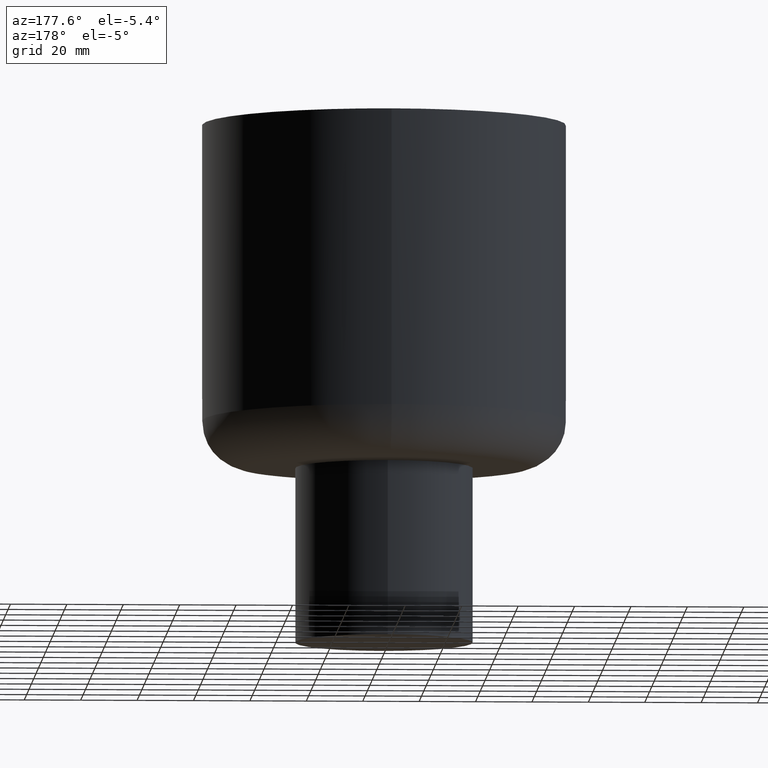
[diagram: clean part render]
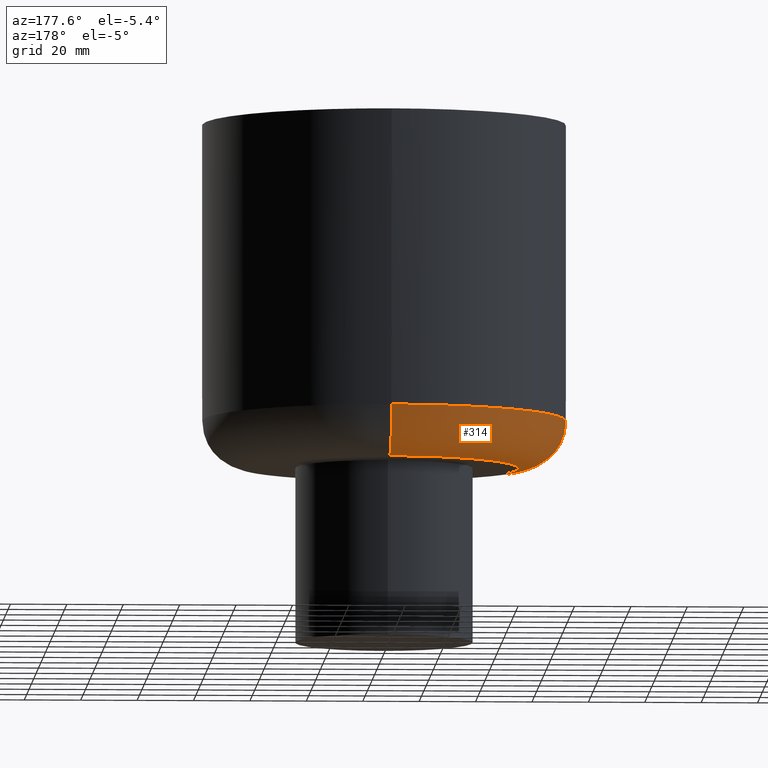
[diagram: same view with one face highlighted and labeled with its STEP entity id]
A machine part, auxiliary view. The second image highlights one B-rep face of the part: STEP entity #314.
In plain terms, the highlighted toroidal blend (fillet) surface has major radius 47.7045 mm and minor (blend) radius 16.7955 mm.
Its self-contained STEP definition (entity closure, byte-faithful):
#24=TOROIDAL_SURFACE('',#364,47.7044883655415,16.7955116344587);
#48=FACE_OUTER_BOUND('',#72,.T.);
#72=EDGE_LOOP('',(#251,#252,#253,#254));
#130=B_SPLINE_CURVE_WITH_KNOTS('',3,(#504,#505,#506,#507,#508,#509,#510,
#511,#512,#513,#514),.UNSPECIFIED.,.F.,.F.,(4,1,1,1,1,1,1,1,4),(0.,0.125,
0.25,0.375,0.5,0.625,0.75,0.875,1.),.UNSPECIFIED.);
#138=B_SPLINE_CURVE_WITH_KNOTS('',3,(#602,#603,#604,#605,#606,#607,#608,
#609,#610,#611),.UNSPECIFIED.,.F.,.F.,(4,1,1,1,1,1,1,4),(0.,0.142857142857143,
0.285714285714286,0.428571428571429,0.571428571428571,0.714285714285714,
0.857142857142857,1.),.UNSPECIFIED.);
#139=B_SPLINE_CURVE_WITH_KNOTS('',3,(#613,#614,#615,#616,#617,#618,#619,
#620,#621,#622,#623,#624,#625,#626,#627,#628,#629,#630,#631,#632,#633,#634,
#635,#636,#637,#638,#639,#640,#641,#642,#643,#644,#645,#646,#647,#648,#649,
#650,#651,#652,#653,#654,#655,#656,#657,#658,#659,#660,#661,#662,#663,#664,
#665,#666,#667,#668,#669,#670,#671,#672,#673,#674,#675,#676,#677,#678,#679,
#680,#681,#682,#683,#684,#685,#686,#687,#688,#689,#690,#691,#692,#693,#694,
#695,#696,#697,#698,#699,#700,#701,#702,#703,#704,#705,#706,#707,#708,#709,
#710,#711,#712,#713,#714,#715),.UNSPECIFIED.,.F.,.F.,(4,3,3,3,3,3,3,3,3,
3,3,3,3,3,3,3,3,3,3,3,3,3,3,3,3,3,3,3,3,3,3,3,3,3,4),(0.,0.0280312962135223,
0.0565897947593608,0.0860713636731308,0.116019515579909,0.146540267381907,
0.177647811120982,0.209355084103488,0.241672974058842,0.274609200328791,
0.308166766326422,0.34234187043375,0.377121184270044,0.412478492514942,
0.449198586732758,0.483623675061961,0.493893843767696,0.498300715537556,
0.502039834296296,0.538422586250105,0.574344910084195,0.609743995866938,
0.644576553043911,0.678815533811602,0.712446616993677,0.745465011656779,
0.777558215542277,0.809092231119628,0.840077025451647,0.870523957961256,
0.900445257379398,0.929611729153235,0.958354526960363,0.98648483739772,
1.),.UNSPECIFIED.);
#140=B_SPLINE_CURVE_WITH_KNOTS('',3,(#716,#717,#718,#719,#720,#721,#722,
#723,#724,#725,#726,#727,#728,#729,#730,#731,#732,#733,#734,#735,#736,#737,
#738,#739,#740,#741,#742,#743,#744,#745,#746,#747,#748,#749,#750,#751,#752,
#753,#754,#755,#756,#757,#758,#759,#760,#761,#762,#763,#764,#765,#766,#767,
#768,#769,#770,#771,#772,#773,#774,#775,#776,#777,#778,#779,#780,#781,#782,
#783,#784,#785,#786,#787,#788,#789,#790,#791,#792,#793,#794,#795,#796,#797,
#798,#799,#800,#801,#802,#803,#804,#805,#806,#807,#808,#809,#810,#811,#812,
#813,#814,#815,#816,#817,#818),.UNSPECIFIED.,.F.,.F.,(4,3,3,3,3,3,3,3,3,
3,3,3,3,3,3,3,3,3,3,3,3,3,3,3,3,3,3,3,3,3,3,3,3,3,4),(0.,0.0280312962136034,
0.0565897947594401,0.0860713636732076,0.116019515580039,0.146540267382073,
0.177647811121092,0.209355084103629,0.241672974059043,0.274609200328942,
0.308166766326558,0.342341870433903,0.377121184270369,0.41247849251534,
0.449198586733132,0.483623675062311,0.493893843768526,0.498300715538562,
0.502039834294189,0.538422586248044,0.57434491008215,0.609743995865032,
0.644576553041988,0.678815533809669,0.712446616991702,0.745465011655011,
0.777558215540569,0.80909223111796,0.840077025449938,0.870523957959576,
0.900445257377577,0.929611729151513,0.95835452695871,0.9864848373962,1.),
 .UNSPECIFIED.);
#141=VERTEX_POINT('',#485);
#142=VERTEX_POINT('',#486);
#151=VERTEX_POINT('',#588);
#152=VERTEX_POINT('',#589);
#169=EDGE_CURVE('',#142,#141,#130,.T.);
#186=EDGE_CURVE('',#151,#152,#138,.T.);
#187=EDGE_CURVE('',#141,#151,#139,.T.);
#188=EDGE_CURVE('',#152,#142,#140,.T.);
#251=ORIENTED_EDGE('',*,*,#186,.T.);
#252=ORIENTED_EDGE('',*,*,#188,.T.);
#253=ORIENTED_EDGE('',*,*,#169,.T.);
#254=ORIENTED_EDGE('',*,*,#187,.T.);
#314=ADVANCED_FACE('',(#48),#24,.T.);
#364=AXIS2_PLACEMENT_3D('',#819,#431,#432);
#431=DIRECTION('center_axis',(0.,-1.63087261263545E-15,-1.));
#432=DIRECTION('ref_axis',(0.,-1.,1.54226330242502E-15));
#485=CARTESIAN_POINT('',(-2.08405250101804E-13,64.5000000000003,-105.204488365541));
#486=CARTESIAN_POINT('',(0.,-64.5000000000002,-105.204488365541));
#504=CARTESIAN_POINT('Ctrl Pts',(0.,-64.5000000000002,-105.204488365541));
#505=CARTESIAN_POINT('Ctrl Pts',(-8.47701262546043,-64.5848508983598,-105.204488365541));
#506=CARTESIAN_POINT('Ctrl Pts',(-25.3093772856424,-61.1022418982154,-105.204488365541));
#507=CARTESIAN_POINT('Ctrl Pts',(-46.8001488873511,-46.8062560905751,-105.204488365541));
#508=CARTESIAN_POINT('Ctrl Pts',(-61.1403514841479,-25.3230580586788,-105.204488365541));
#509=CARTESIAN_POINT('Ctrl Pts',(-66.1798242579264,-4.86444218239512E-14,
-105.204488365541));
#510=CARTESIAN_POINT('Ctrl Pts',(-61.140351484148,25.3230580586787,-105.204488365541));
#511=CARTESIAN_POINT('Ctrl Pts',(-46.8001488873512,46.8062560905751,-105.204488365541));
#512=CARTESIAN_POINT('Ctrl Pts',(-25.3093772856426,61.1022418982155,-105.204488365541));
#513=CARTESIAN_POINT('Ctrl Pts',(-8.47701262546063,64.5848508983599,-105.204488365541));
#514=CARTESIAN_POINT('Ctrl Pts',(-2.08853767613704E-13,64.5000000000003,
-105.204488365541));
#588=CARTESIAN_POINT('',(-1.58623114643319E-13,47.7044883655416,-122.));
#589=CARTESIAN_POINT('',(0.,-47.7044883655415,-122.));
#602=CARTESIAN_POINT('Ctrl Pts',(-1.54137454710066E-13,47.7044883655416,
-122.));
#603=CARTESIAN_POINT('Ctrl Pts',(-7.18525898615853,47.8086943355471,-122.));
#604=CARTESIAN_POINT('Ctrl Pts',(-21.38145723644,44.3990534413639,-122.));
#605=CARTESIAN_POINT('Ctrl Pts',(-38.5762219016101,30.7718247113022,-122.));
#606=CARTESIAN_POINT('Ctrl Pts',(-48.0948803123814,10.9732197062494,-122.));
#607=CARTESIAN_POINT('Ctrl Pts',(-48.0948803123814,-10.9732197062495,-122.));
#608=CARTESIAN_POINT('Ctrl Pts',(-38.57622190161,-30.7718247113023,-122.));
#609=CARTESIAN_POINT('Ctrl Pts',(-21.3814572364399,-44.3990534413639,-122.));
#610=CARTESIAN_POINT('Ctrl Pts',(-7.18525898615838,-47.8086943355471,-122.));
#611=CARTESIAN_POINT('Ctrl Pts',(-2.80895098847544E-16,-47.7044883655415,
-122.));
#613=CARTESIAN_POINT('Ctrl Pts',(7.89897185450045E-15,64.5000000000003,
-105.204488365541));
#614=CARTESIAN_POINT('Ctrl Pts',(7.89897185450045E-15,64.5000000000003,
-105.491429505632));
#615=CARTESIAN_POINT('Ctrl Pts',(7.89807156651691E-15,64.4926485907272,
-105.775210999637));
#616=CARTESIAN_POINT('Ctrl Pts',(7.89632902044324E-15,64.4784196222207,
-106.055629516844));
#617=CARTESIAN_POINT('Ctrl Pts',(7.8945537012025E-15,64.4639230404962,-106.341322042614));
#618=CARTESIAN_POINT('Ctrl Pts',(-7.98048538845744E-14,64.4422879813638,
-106.62352414212));
#619=CARTESIAN_POINT('Ctrl Pts',(-7.79282347273998E-14,64.4139896921907,
-106.902067959537));
#620=CARTESIAN_POINT('Ctrl Pts',(-7.59909593164275E-14,64.3847767431605,
-107.189614895363));
#621=CARTESIAN_POINT('Ctrl Pts',(7.88041394096178E-15,64.3484631360522,
-107.473263414381));
#622=CARTESIAN_POINT('Ctrl Pts',(7.87515744004394E-15,64.3055405487275,
-107.75287559561));
#623=CARTESIAN_POINT('Ctrl Pts',(7.86981774837265E-15,64.2619386573494,
-108.03691299209));
#624=CARTESIAN_POINT('Ctrl Pts',(7.86364288919745E-15,64.2115171057682,
-108.316785600533));
#625=CARTESIAN_POINT('Ctrl Pts',(7.85669170536864E-15,64.15475638232,-108.59239232513));
#626=CARTESIAN_POINT('Ctrl Pts',(7.84960761694042E-15,64.0969104104598,
-108.873268569599));
#627=CARTESIAN_POINT('Ctrl Pts',(7.84171725341516E-15,64.0324807028024,
-109.149714562877));
#628=CARTESIAN_POINT('Ctrl Pts',(7.83307818293034E-15,63.9619373388641,
-109.421663242524));
#629=CARTESIAN_POINT('Ctrl Pts',(7.82427301768687E-15,63.8900377082963,
-109.698840407155));
#630=CARTESIAN_POINT('Ctrl Pts',(7.81469009587838E-15,63.8117872134176,
-109.971346001163));
#631=CARTESIAN_POINT('Ctrl Pts',(7.80438524165774E-15,63.7276416930291,
-110.239145107273));
#632=CARTESIAN_POINT('Ctrl Pts',(7.79388171786431E-15,63.6418739124678,
-110.512107171817));
#633=CARTESIAN_POINT('Ctrl Pts',(7.78262816979478E-15,63.5499817189198,
-110.780179878737));
#634=CARTESIAN_POINT('Ctrl Pts',(7.77067820813047E-15,63.4524028768191,
-111.043358085678));
#635=CARTESIAN_POINT('Ctrl Pts',(7.75849811474146E-15,63.3529448665789,
-111.3116045645));
#636=CARTESIAN_POINT('Ctrl Pts',(7.7455945359244E-15,63.2475791494918,-111.574766584334));
#637=CARTESIAN_POINT('Ctrl Pts',(7.73201840182118E-15,63.1367216017265,
-111.832865874949));
#638=CARTESIAN_POINT('Ctrl Pts',(7.71818251633137E-15,63.0237430229277,
-112.095903364326));
#639=CARTESIAN_POINT('Ctrl Pts',(7.70364809894336E-15,62.9050604983163,
-112.353682930808));
#640=CARTESIAN_POINT('Ctrl Pts',(7.68846293842389E-15,62.7810642527862,
-112.606249681565));
#641=CARTESIAN_POINT('Ctrl Pts',(7.67299131085672E-15,62.6547288262948,
-112.863581087351));
#642=CARTESIAN_POINT('Ctrl Pts',(7.65684415735022E-15,62.522877311901,-113.115501549394));
#643=CARTESIAN_POINT('Ctrl Pts',(7.64006567647721E-15,62.3858706183409,
-113.362075399121));
#644=CARTESIAN_POINT('Ctrl Pts',(7.62297843210917E-15,62.2463426795105,
-113.613186787388));
#645=CARTESIAN_POINT('Ctrl Pts',(7.60523640729545E-15,62.1014680525888,
-113.858753393883));
#646=CARTESIAN_POINT('Ctrl Pts',(7.58687978251375E-15,61.9515748360755,
-114.098853894592));
#647=CARTESIAN_POINT('Ctrl Pts',(7.56819861588869E-15,61.7990315343001,
-114.343199329215));
#648=CARTESIAN_POINT('Ctrl Pts',(7.54888091648269E-15,61.6412905479239,
-114.581884105676));
#649=CARTESIAN_POINT('Ctrl Pts',(7.52896245323397E-15,61.4786439524925,
-114.814995580548));
#650=CARTESIAN_POINT('Ctrl Pts',(7.50871296676725E-15,61.3132943473589,
-115.05198111486));
#651=CARTESIAN_POINT('Ctrl Pts',(7.48784256800745E-15,61.1428746085874,
-115.283207011111));
#652=CARTESIAN_POINT('Ctrl Pts',(7.46638227531662E-15,60.9676380203256,
-115.50876283287));
#653=CARTESIAN_POINT('Ctrl Pts',(7.4440948329556E-15,60.7856472424414,-115.74301231162));
#654=CARTESIAN_POINT('Ctrl Pts',(7.42117115065595E-15,60.5984611711954,
-115.971146735225));
#655=CARTESIAN_POINT('Ctrl Pts',(7.39763900496342E-15,60.4063066192959,
-116.193256454451));
#656=CARTESIAN_POINT('Ctrl Pts',(7.37557761837667E-15,60.2261617268901,
-116.401484316224));
#657=CARTESIAN_POINT('Ctrl Pts',(7.35298135692902E-15,60.0416492497956,
-116.604417235756));
#658=CARTESIAN_POINT('Ctrl Pts',(7.32986794117456E-15,59.8529138873176,
-116.80211607146));
#659=CARTESIAN_POINT('Ctrl Pts',(7.322972427156E-15,59.7966077423674,-116.861096323775));
#660=CARTESIAN_POINT('Ctrl Pts',(7.31603085287966E-15,59.7399254868699,
-116.919610619181));
#661=CARTESIAN_POINT('Ctrl Pts',(7.30904360944782E-15,59.6828703144177,
-116.977660280963));
#662=CARTESIAN_POINT('Ctrl Pts',(7.30604542249382E-15,59.6583882600321,
-117.00256906514));
#663=CARTESIAN_POINT('Ctrl Pts',(7.30303882640406E-15,59.6338375398419,
-117.027392298207));
#664=CARTESIAN_POINT('Ctrl Pts',(7.3000238501186E-15,59.6092183901609,-117.052130076201));
#665=CARTESIAN_POINT('Ctrl Pts',(7.29746571932314E-15,59.5883296670022,
-117.07311945247));
#666=CARTESIAN_POINT('Ctrl Pts',(7.29490185723534E-15,59.5673941442899,
-117.0940448979));
#667=CARTESIAN_POINT('Ctrl Pts',(7.29233002756467E-15,59.5463935613263,
-117.114924646269));
#668=CARTESIAN_POINT('Ctrl Pts',(7.26730535009047E-15,59.3420515625424,
-117.318090888049));
#669=CARTESIAN_POINT('Ctrl Pts',(7.24156752543831E-15,59.1318862751299,
-117.516595519237));
#670=CARTESIAN_POINT('Ctrl Pts',(7.21510868532118E-15,58.9158334496495,
-117.710285120178));
#671=CARTESIAN_POINT('Ctrl Pts',(7.18898468502101E-15,58.702514798767,-117.901523555829));
#672=CARTESIAN_POINT('Ctrl Pts',(7.16215774961931E-15,58.483456247188,-118.088068292408));
#673=CARTESIAN_POINT('Ctrl Pts',(7.13461811529521E-15,58.2585780672649,
-118.269724744238));
#674=CARTESIAN_POINT('Ctrl Pts',(7.10747961828798E-15,58.0369754221094,
-118.448735221149));
#675=CARTESIAN_POINT('Ctrl Pts',(7.07964898014452E-15,57.8097210156728,
-118.62299895777));
#676=CARTESIAN_POINT('Ctrl Pts',(7.05111550128654E-15,57.5767274792684,
-118.792280899453));
#677=CARTESIAN_POINT('Ctrl Pts',(7.02303867354364E-15,57.3474627821945,
-118.958853645115));
#678=CARTESIAN_POINT('Ctrl Pts',(6.99428126944759E-15,57.1126407574599,
-119.120602905176));
#679=CARTESIAN_POINT('Ctrl Pts',(6.96483254690385E-15,56.8721736892061,
-119.277254862201));
#680=CARTESIAN_POINT('Ctrl Pts',(6.93588565564677E-15,56.6358043843809,
-119.431237336601));
#681=CARTESIAN_POINT('Ctrl Pts',(6.90627075563095E-15,56.3939803740913,
-119.580294834732));
#682=CARTESIAN_POINT('Ctrl Pts',(6.87597786777236E-15,56.1466201729322,
-119.724117204113));
#683=CARTESIAN_POINT('Ctrl Pts',(6.84622281640825E-15,55.9036517400353,
-119.865386072509));
#684=CARTESIAN_POINT('Ctrl Pts',(6.81581358896174E-15,55.6553415540479,
-120.001604098029));
#685=CARTESIAN_POINT('Ctrl Pts',(6.78474167999419E-15,55.4016201627931,
-120.132427712919));
#686=CARTESIAN_POINT('Ctrl Pts',(6.75423583670416E-15,55.1525210485727,
-120.260867993128));
#687=CARTESIAN_POINT('Ctrl Pts',(6.72309118982215E-15,54.8982057071723,
-120.384108626888));
#688=CARTESIAN_POINT('Ctrl Pts',(6.69130132483041E-15,54.6386217600794,
-120.501775874443));
#689=CARTESIAN_POINT('Ctrl Pts',(6.66040222664342E-15,54.3863114759346,
-120.616146030986));
#690=CARTESIAN_POINT('Ctrl Pts',(6.62889352191133E-15,54.1290233765901,
-120.725250659607));
#691=CARTESIAN_POINT('Ctrl Pts',(6.59677151354628E-15,53.8667272730326,
-120.828701072434));
#692=CARTESIAN_POINT('Ctrl Pts',(6.56520919537533E-15,53.6090013867369,
-120.930348977119));
#693=CARTESIAN_POINT('Ctrl Pts',(6.53305471732761E-15,53.3464401480997,
-121.026537937185));
#694=CARTESIAN_POINT('Ctrl Pts',(6.50030733038745E-15,53.0790374409439,
-121.116855672115));
#695=CARTESIAN_POINT('Ctrl Pts',(6.46813029772369E-15,52.8162920298902,
-121.205600362257));
#696=CARTESIAN_POINT('Ctrl Pts',(6.43538078863558E-15,52.5488719940814,
-121.28867648552));
#697=CARTESIAN_POINT('Ctrl Pts',(6.40206138897168E-15,52.2767984485735,
-121.365651429128));
#698=CARTESIAN_POINT('Ctrl Pts',(6.36932037730134E-15,52.0094477994465,
-121.441290172695));
#699=CARTESIAN_POINT('Ctrl Pts',(4.45810352998207E-15,51.7376034776068,
-121.51103761493));
#700=CARTESIAN_POINT('Ctrl Pts',(6.30219365738766E-15,51.4613165344939,
-121.57444417404));
#701=CARTESIAN_POINT('Ctrl Pts',(8.11444757947744E-15,51.1897993841998,
-121.636756088043));
#702=CARTESIAN_POINT('Ctrl Pts',(4.55500989278027E-15,50.9139913759423,
-121.692944038183));
#703=CARTESIAN_POINT('Ctrl Pts',(6.20087363715179E-15,50.6339757836226,
-121.742544917946));
#704=CARTESIAN_POINT('Ctrl Pts',(7.8052170105111E-15,50.3610241729489,-121.790894511302));
#705=CARTESIAN_POINT('Ctrl Pts',(4.63199468244654E-15,50.0840743594905,
-121.832984994592));
#706=CARTESIAN_POINT('Ctrl Pts',(6.09913793033001E-15,49.8032406941861,
-121.868354955449));
#707=CARTESIAN_POINT('Ctrl Pts',(7.54496936496494E-15,49.5264864360135,
-121.903211130075));
#708=CARTESIAN_POINT('Ctrl Pts',(4.66739051227575E-15,49.2459600570614,
-121.931540452686));
#709=CARTESIAN_POINT('Ctrl Pts',(5.99609257183573E-15,48.9618114872831,
-121.952871858606));
#710=CARTESIAN_POINT('Ctrl Pts',(7.29648099139697E-15,48.6837179094822,
-121.973748708335));
#711=CARTESIAN_POINT('Ctrl Pts',(5.92755437691009E-15,48.4021546541998,
-121.987922496792));
#712=CARTESIAN_POINT('Ctrl Pts',(5.89267034409981E-15,48.1173049094851,
-121.994925928758));
#713=CARTESIAN_POINT('Ctrl Pts',(5.87591036639874E-15,47.9804493057899,
-121.998290716431));
#714=CARTESIAN_POINT('Ctrl Pts',(5.28641881318069E-15,47.8428357375669,
-122.));
#715=CARTESIAN_POINT('Ctrl Pts',(5.84211489818226E-15,47.7044883655416,
-122.));
#716=CARTESIAN_POINT('Ctrl Pts',(0.,-47.7044883655415,-122.));
#717=CARTESIAN_POINT('Ctrl Pts',(0.,-47.9914295056327,-122.));
#718=CARTESIAN_POINT('Ctrl Pts',(0.,-48.2752109996388,-121.992648590727));
#719=CARTESIAN_POINT('Ctrl Pts',(0.,-48.5556295168462,-121.97841962222));
#720=CARTESIAN_POINT('Ctrl Pts',(0.,-48.8413220426171,-121.963923040496));
#721=CARTESIAN_POINT('Ctrl Pts',(0.,-49.1235241421227,-121.942287981363));
#722=CARTESIAN_POINT('Ctrl Pts',(0.,-49.4020679595392,-121.91398969219));
#723=CARTESIAN_POINT('Ctrl Pts',(0.,-49.6896148953661,-121.88477674316));
#724=CARTESIAN_POINT('Ctrl Pts',(0.,-49.9732634143832,-121.848463136051));
#725=CARTESIAN_POINT('Ctrl Pts',(0.,-50.2528755956121,-121.805540548727));
#726=CARTESIAN_POINT('Ctrl Pts',(0.,-50.5369129920932,-121.761938657348));
#727=CARTESIAN_POINT('Ctrl Pts',(0.,-50.8167856005366,-121.711517105767));
#728=CARTESIAN_POINT('Ctrl Pts',(0.,-51.0923923251334,-121.654756382319));
#729=CARTESIAN_POINT('Ctrl Pts',(0.,-51.3732685696028,-121.596910410458));
#730=CARTESIAN_POINT('Ctrl Pts',(0.,-51.6497145628816,-121.532480702801));
#731=CARTESIAN_POINT('Ctrl Pts',(0.,-51.9216632425285,-121.461937338862));
#732=CARTESIAN_POINT('Ctrl Pts',(0.,-52.1988404071591,-121.390037708295));
#733=CARTESIAN_POINT('Ctrl Pts',(0.,-52.4713460011665,-121.311787213416));
#734=CARTESIAN_POINT('Ctrl Pts',(0.,-52.739145107276,-121.227641693028));
#735=CARTESIAN_POINT('Ctrl Pts',(0.,-53.0121071718199,-121.141873912466));
#736=CARTESIAN_POINT('Ctrl Pts',(0.,-53.2801798787403,-121.049981718918));
#737=CARTESIAN_POINT('Ctrl Pts',(0.,-53.5433580856821,-120.952402876817));
#738=CARTESIAN_POINT('Ctrl Pts',(0.,-53.8116045645039,-120.852944866577));
#739=CARTESIAN_POINT('Ctrl Pts',(0.,-54.0747665843391,-120.74757914949));
#740=CARTESIAN_POINT('Ctrl Pts',(0.,-54.3328658749545,-120.636721601724));
#741=CARTESIAN_POINT('Ctrl Pts',(0.,-54.5959033643307,-120.523743022925));
#742=CARTESIAN_POINT('Ctrl Pts',(0.,-54.8536829308125,-120.405060498314));
#743=CARTESIAN_POINT('Ctrl Pts',(0.,-55.1062496815691,-120.281064252784));
#744=CARTESIAN_POINT('Ctrl Pts',(0.,-55.363581087355,-120.154728826293));
#745=CARTESIAN_POINT('Ctrl Pts',(0.,-55.6155015493979,-120.022877311899));
#746=CARTESIAN_POINT('Ctrl Pts',(0.,-55.8620753991241,-119.885870618339));
#747=CARTESIAN_POINT('Ctrl Pts',(0.,-56.1131867873916,-119.746342679508));
#748=CARTESIAN_POINT('Ctrl Pts',(0.,-56.3587533938866,-119.601468052586));
#749=CARTESIAN_POINT('Ctrl Pts',(0.,-56.5988538945955,-119.451574836073));
#750=CARTESIAN_POINT('Ctrl Pts',(0.,-56.8431993292201,-119.299031534297));
#751=CARTESIAN_POINT('Ctrl Pts',(0.,-57.0818841056821,-119.14129054792));
#752=CARTESIAN_POINT('Ctrl Pts',(0.,-57.3149955805552,-118.978643952487));
#753=CARTESIAN_POINT('Ctrl Pts',(0.,-57.551981114867,-118.813294347353));
#754=CARTESIAN_POINT('Ctrl Pts',(0.,-57.7832070111182,-118.642874608581));
#755=CARTESIAN_POINT('Ctrl Pts',(0.,-58.0087628328777,-118.467638020319));
#756=CARTESIAN_POINT('Ctrl Pts',(0.,-58.2430123116274,-118.285647242435));
#757=CARTESIAN_POINT('Ctrl Pts',(0.,-58.4711467352326,-118.098461171189));
#758=CARTESIAN_POINT('Ctrl Pts',(0.,-58.6932564544576,-117.906306619289));
#759=CARTESIAN_POINT('Ctrl Pts',(0.,-58.901484316231,-117.726161726884));
#760=CARTESIAN_POINT('Ctrl Pts',(0.,-59.1044172357627,-117.541649249789));
#761=CARTESIAN_POINT('Ctrl Pts',(0.,-59.3021160714665,-117.352913887311));
#762=CARTESIAN_POINT('Ctrl Pts',(0.,-59.3610963237838,-117.296607742358));
#763=CARTESIAN_POINT('Ctrl Pts',(0.,-59.4196106191927,-117.239925486858));
#764=CARTESIAN_POINT('Ctrl Pts',(0.,-59.4776602809773,-117.182870314403));
#765=CARTESIAN_POINT('Ctrl Pts',(0.,-59.5025690651557,-117.158388260017));
#766=CARTESIAN_POINT('Ctrl Pts',(0.,-59.5273922982235,-117.133837539826));
#767=CARTESIAN_POINT('Ctrl Pts',(0.,-59.5521300762182,-117.109218390143));
#768=CARTESIAN_POINT('Ctrl Pts',(0.,-59.5731194524696,-117.088329667002));
#769=CARTESIAN_POINT('Ctrl Pts',(0.,-59.5940448978823,-117.067394144307));
#770=CARTESIAN_POINT('Ctrl Pts',(0.,-59.6149246462343,-117.046393561361));
#771=CARTESIAN_POINT('Ctrl Pts',(0.,-59.8180908880151,-116.842051562578));
#772=CARTESIAN_POINT('Ctrl Pts',(0.,-60.0165955192035,-116.631886275166));
#773=CARTESIAN_POINT('Ctrl Pts',(0.,-60.2102851201455,-116.415833449686));
#774=CARTESIAN_POINT('Ctrl Pts',(0.,-60.4015235557966,-116.202514798804));
#775=CARTESIAN_POINT('Ctrl Pts',(0.,-60.5880682923768,-115.983456247225));
#776=CARTESIAN_POINT('Ctrl Pts',(0.,-60.769724744207,-115.758578067303));
#777=CARTESIAN_POINT('Ctrl Pts',(0.,-60.9487352211196,-115.536975422147));
#778=CARTESIAN_POINT('Ctrl Pts',(0.,-61.1229989577413,-115.30972101571));
#779=CARTESIAN_POINT('Ctrl Pts',(0.,-61.2922808994264,-115.076727479305));
#780=CARTESIAN_POINT('Ctrl Pts',(0.,-61.4588536450881,-114.847462782232));
#781=CARTESIAN_POINT('Ctrl Pts',(0.,-61.6206029051498,-114.612640757498));
#782=CARTESIAN_POINT('Ctrl Pts',(0.,-61.7772548621751,-114.372173689245));
#783=CARTESIAN_POINT('Ctrl Pts',(0.,-61.9312373365757,-114.135804384421));
#784=CARTESIAN_POINT('Ctrl Pts',(0.,-62.0802948347078,-113.893980374132));
#785=CARTESIAN_POINT('Ctrl Pts',(0.,-62.2241172040887,-113.646620172974));
#786=CARTESIAN_POINT('Ctrl Pts',(0.,-62.3653860724849,-113.403651740078));
#787=CARTESIAN_POINT('Ctrl Pts',(0.,-62.5016040980061,-113.155341554091));
#788=CARTESIAN_POINT('Ctrl Pts',(0.,-62.6324277128958,-112.901620162837));
#789=CARTESIAN_POINT('Ctrl Pts',(0.,-62.7608679931071,-112.652521048616));
#790=CARTESIAN_POINT('Ctrl Pts',(0.,-62.8841086268682,-112.398205707215));
#791=CARTESIAN_POINT('Ctrl Pts',(0.,-63.001775874424,-112.138621760121));
#792=CARTESIAN_POINT('Ctrl Pts',(0.,-63.1161460309677,-111.886311475976));
#793=CARTESIAN_POINT('Ctrl Pts',(0.,-63.2252506595903,-111.629023376631));
#794=CARTESIAN_POINT('Ctrl Pts',(0.,-63.3287010724181,-111.366727273074));
#795=CARTESIAN_POINT('Ctrl Pts',(0.,-63.4303489771033,-111.109001386778));
#796=CARTESIAN_POINT('Ctrl Pts',(0.,-63.5265379371705,-110.846440148141));
#797=CARTESIAN_POINT('Ctrl Pts',(0.,-63.6168556721013,-110.579037440986));
#798=CARTESIAN_POINT('Ctrl Pts',(0.,-63.7056003622436,-110.316292029933));
#799=CARTESIAN_POINT('Ctrl Pts',(0.,-63.7886764855074,-110.048871994125));
#800=CARTESIAN_POINT('Ctrl Pts',(0.,-63.8656514291155,-109.776798448618));
#801=CARTESIAN_POINT('Ctrl Pts',(0.,-63.9412901726831,-109.509447799491));
#802=CARTESIAN_POINT('Ctrl Pts',(0.,-64.011037614919,-109.237603477652));
#803=CARTESIAN_POINT('Ctrl Pts',(0.,-64.0744441740298,-108.961316534539));
#804=CARTESIAN_POINT('Ctrl Pts',(0.,-64.1367560880336,-108.689799384247));
#805=CARTESIAN_POINT('Ctrl Pts',(0.,-64.1929440381739,-108.413991375991));
#806=CARTESIAN_POINT('Ctrl Pts',(0.,-64.2425449179373,-108.133975783673));
#807=CARTESIAN_POINT('Ctrl Pts',(0.,-64.2908945112946,-107.861024172999));
#808=CARTESIAN_POINT('Ctrl Pts',(0.,-64.3329849945846,-107.58407435954));
#809=CARTESIAN_POINT('Ctrl Pts',(0.,-64.368354955443,-107.303240694235));
#810=CARTESIAN_POINT('Ctrl Pts',(0.,-64.4032111300699,-107.026486436062));
#811=CARTESIAN_POINT('Ctrl Pts',(0.,-64.4315404526821,-106.74596005711));
#812=CARTESIAN_POINT('Ctrl Pts',(0.,-64.4528718586028,-106.461811487332));
#813=CARTESIAN_POINT('Ctrl Pts',(0.,-64.473748708332,-106.18371790953));
#814=CARTESIAN_POINT('Ctrl Pts',(0.,-64.4879224967902,-105.902154654246));
#815=CARTESIAN_POINT('Ctrl Pts',(0.,-64.4949259287572,-105.617304909531));
#816=CARTESIAN_POINT('Ctrl Pts',(0.,-64.4982907164309,-105.48044930582));
#817=CARTESIAN_POINT('Ctrl Pts',(0.,-64.5000000000002,-105.342835737582));
#818=CARTESIAN_POINT('Ctrl Pts',(0.,-64.5000000000002,-105.204488365541));
#819=CARTESIAN_POINT('Origin',(0.,6.00087921925481E-14,-105.204488365541));